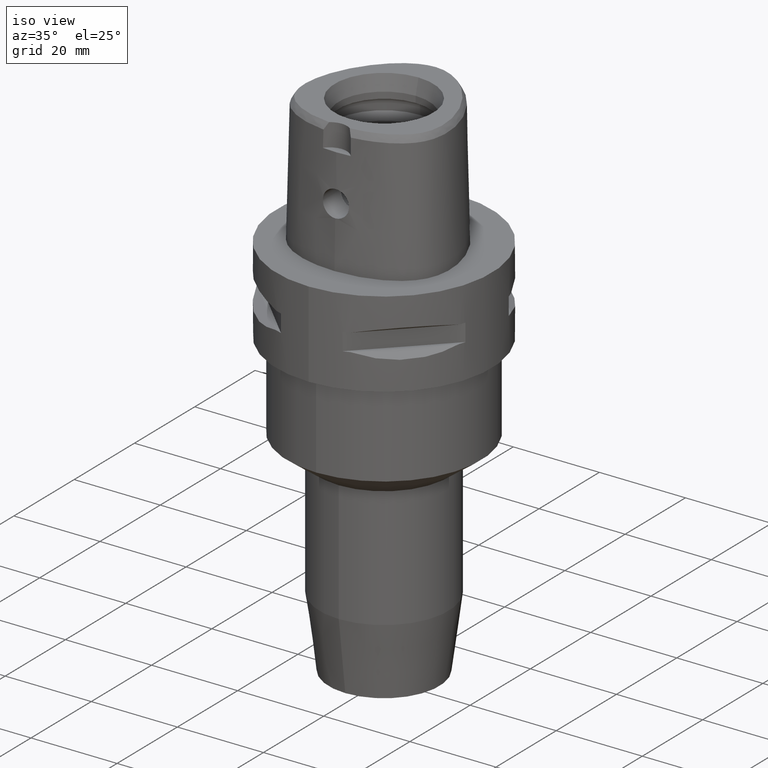
[diagram: clean part render]
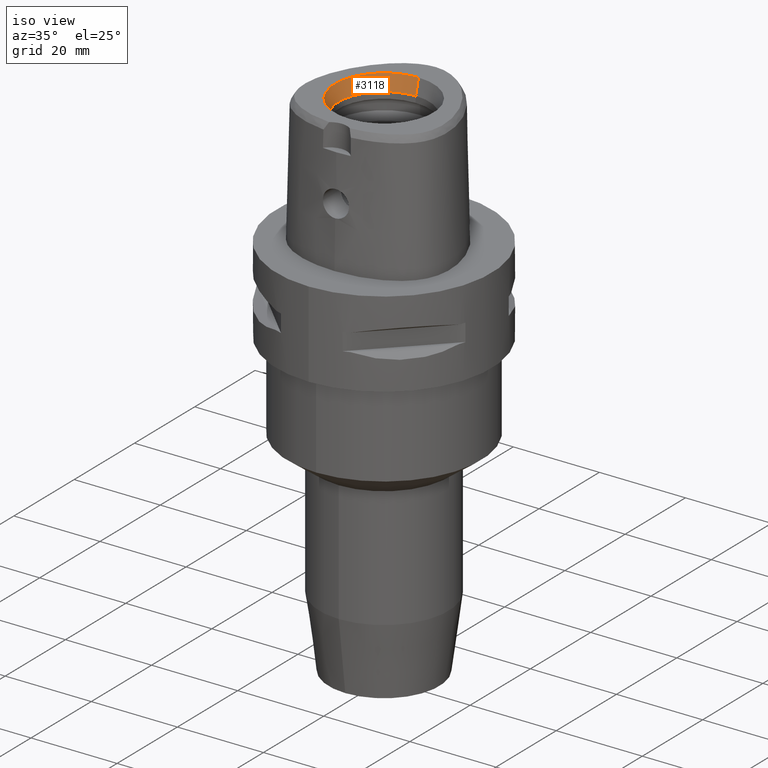
[diagram: same view with one face highlighted and labeled with its STEP entity id]
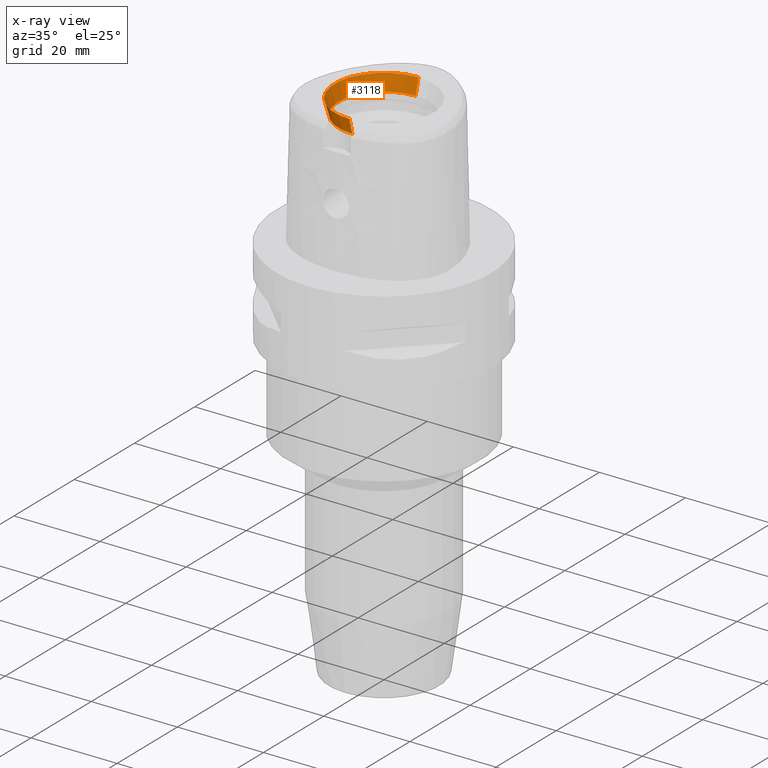
[diagram: x-ray of the same camera — body ghosted, the highlighted face saturated]
A machine part, iso view. The second image highlights one B-rep face of the part: STEP entity #3118.
The next image is the same camera in x-ray: the body ghosted, the highlighted face saturated — about 0% of this face is hidden behind the body in this view.
In plain terms, the highlighted conical surface has half-angle 15 deg.
Its self-contained STEP definition (entity closure, byte-faithful):
#108=CARTESIAN_POINT('',(0.E0,1.570609519906E-14,3.E1));
#109=DIRECTION('',(0.E0,0.E0,1.E0));
#110=DIRECTION('',(0.E0,1.E0,0.E0));
#111=AXIS2_PLACEMENT_3D('',#108,#109,#110);
#1190=CARTESIAN_POINT('',(0.E0,1.570609519906E-14,2.65E1));
#1191=DIRECTION('',(0.E0,0.E0,1.E0));
#1192=DIRECTION('',(0.E0,1.E0,0.E0));
#1193=AXIS2_PLACEMENT_3D('',#1190,#1191,#1192);
#1198=DIRECTION('',(0.E0,-2.588190451024E-1,9.659258262891E-1));
#1199=VECTOR('',#1198,3.623466631436E0);
#1200=CARTESIAN_POINT('',(0.E0,-1.05E1,2.65E1));
#1201=LINE('',#1200,#1199);
#1213=DIRECTION('',(0.E0,2.588190451024E-1,9.659258262891E-1));
#1214=VECTOR('',#1213,3.623466631436E0);
#1215=CARTESIAN_POINT('',(0.E0,1.05E1,2.65E1));
#1216=LINE('',#1215,#1214);
#1525=CARTESIAN_POINT('',(0.E0,1.143782217350E1,3.E1));
#1526=CARTESIAN_POINT('',(0.E0,-1.143782217350E1,3.E1));
#1527=VERTEX_POINT('',#1525);
#1528=VERTEX_POINT('',#1526);
#1687=CARTESIAN_POINT('',(0.E0,-1.05E1,2.65E1));
#1688=VERTEX_POINT('',#1687);
#1689=CARTESIAN_POINT('',(0.E0,1.05E1,2.65E1));
#1690=VERTEX_POINT('',#1689);
#3105=CARTESIAN_POINT('',(0.E0,1.570609519906E-14,2.825E1));
#3106=DIRECTION('',(0.E0,0.E0,1.E0));
#3107=DIRECTION('',(0.E0,1.E0,0.E0));
#3108=AXIS2_PLACEMENT_3D('',#3105,#3106,#3107);
#3109=CONICAL_SURFACE('',#3108,1.096891108675E1,1.5E1);
#3110=ORIENTED_EDGE('',*,*,#1704,.F.);
#3112=ORIENTED_EDGE('',*,*,#3111,.F.);
#3113=ORIENTED_EDGE('',*,*,#3098,.T.);
#3115=ORIENTED_EDGE('',*,*,#3114,.T.);
#3116=EDGE_LOOP('',(#3110,#3112,#3113,#3115));
#3117=FACE_OUTER_BOUND('',#3116,.F.);
#112=CIRCLE('',#111,1.143782217350E1);
#1194=CIRCLE('',#1193,1.05E1);
#1704=EDGE_CURVE('',#1527,#1528,#112,.T.);
#3098=EDGE_CURVE('',#1690,#1688,#1194,.T.);
#3111=EDGE_CURVE('',#1690,#1527,#1216,.T.);
#3114=EDGE_CURVE('',#1688,#1528,#1201,.T.);
#3118=ADVANCED_FACE('',(#3117),#3109,.F.);